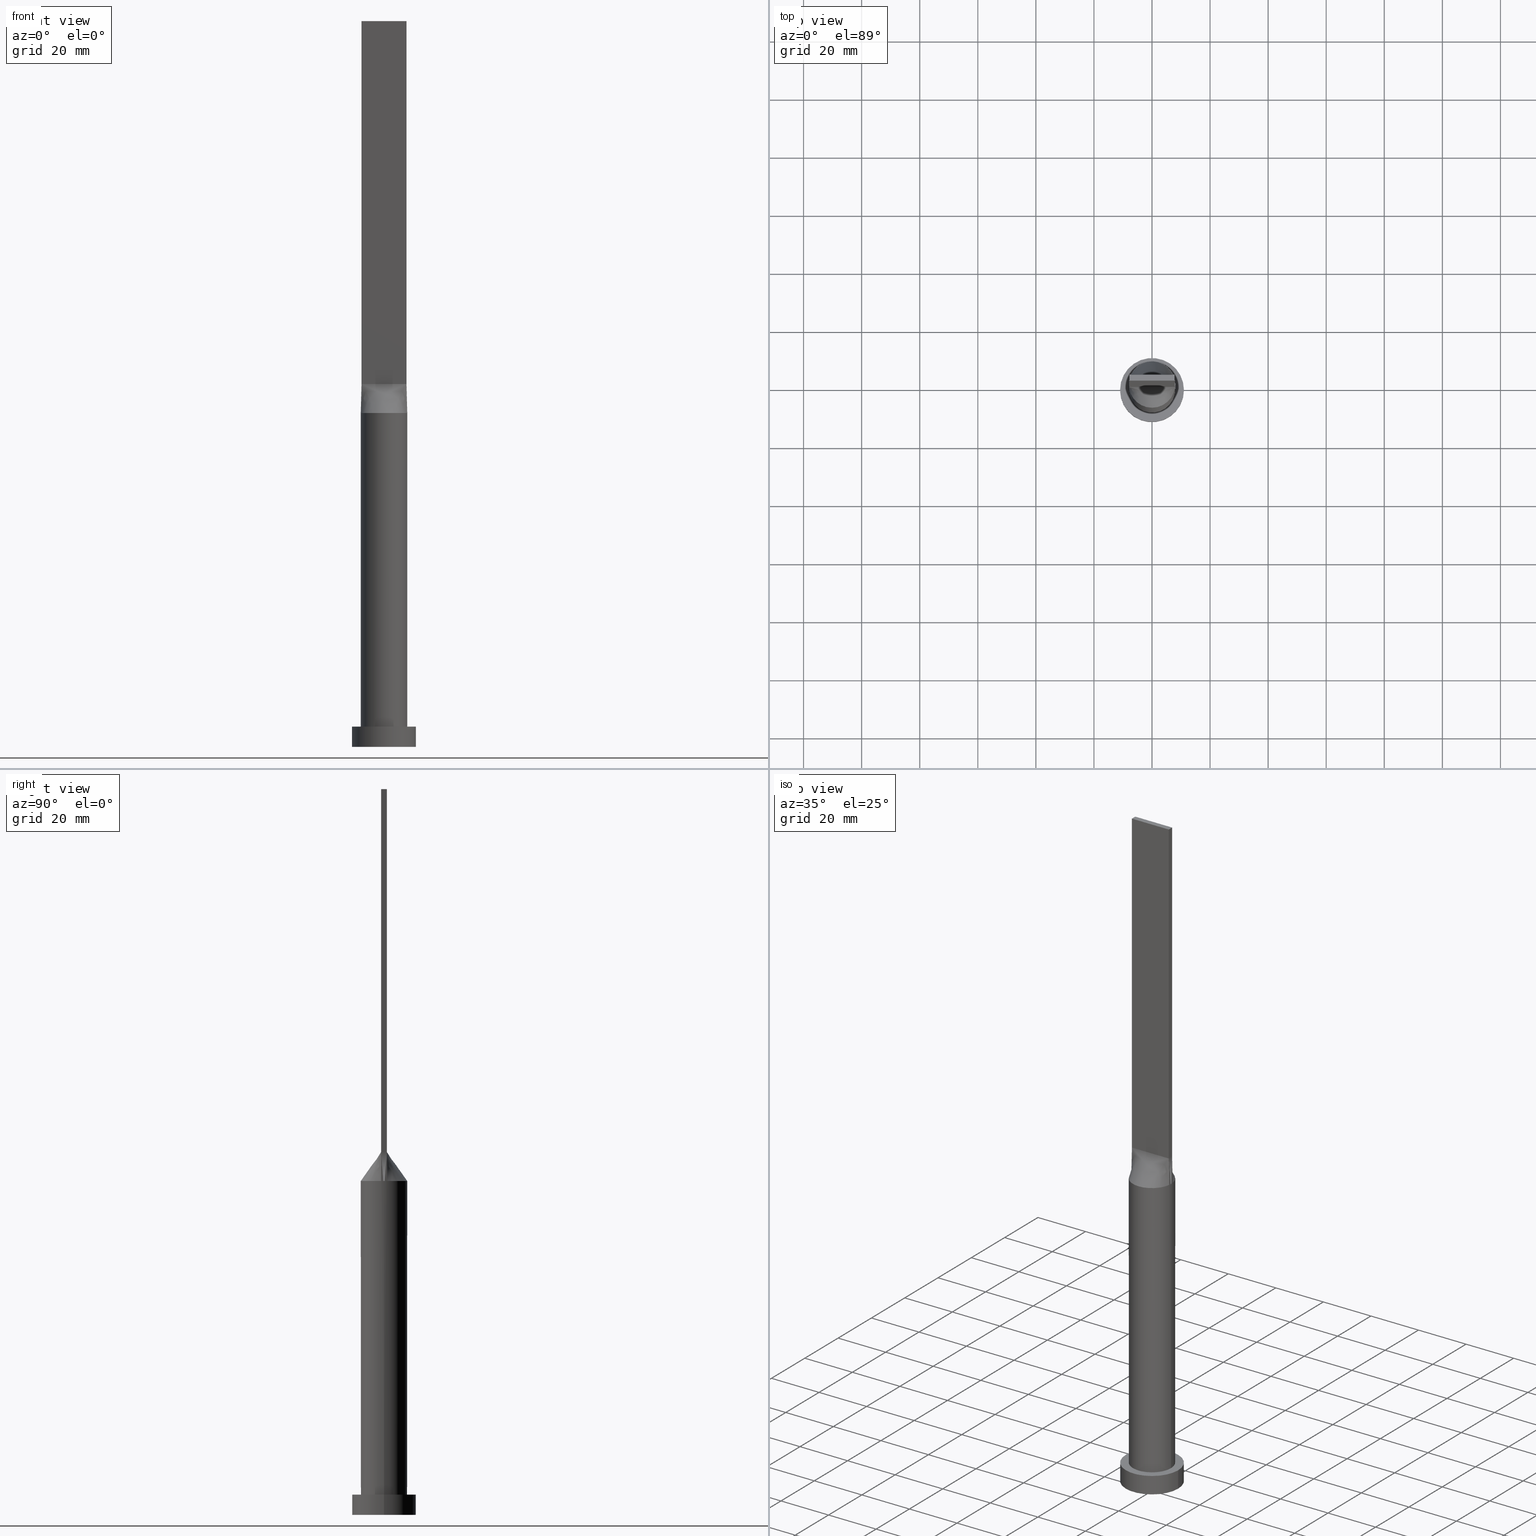
[diagram: canonical four-view strip — front | top / right | iso, engineering-drawing reading convention]
A machine part, canonical four-view strip (front | top / right | iso — engineering-drawing reading convention). The complete STEP part file that produces these views, byte-faithful:
ISO-10303-21;
HEADER;
FILE_DESCRIPTION (( 'STEP AP203' ),
    '1' );
FILE_NAME ('5cea.STEP',
    '2023-02-13T08:49:26',
    ( '' ),
    ( '' ),
    'SwSTEP 2.0',
    'SolidWorks 2019',
    '' );
FILE_SCHEMA (( 'CONFIG_CONTROL_DESIGN' ));
ENDSEC;

DATA;
#1 = CARTESIAN_POINT ( 'NONE',  ( -0.5861720261543129640, 7.999999999999998224, 114.9999999999999858 ) ) ;
#2 = ORIENTED_EDGE ( 'NONE', *, *, #195, .F. ) ;
#3 = ORIENTED_EDGE ( 'NONE', *, *, #418, .F. ) ;
#4 = APPROVAL_ROLE ( '' ) ;
#5 = CARTESIAN_POINT ( 'NONE',  ( 2.847317194822259534, 7.497028652483948008, 115.0000000000000284 ) ) ;
#6 = AXIS2_PLACEMENT_3D ( 'NONE', #38, #395, #391 ) ;
#7 = DATE_AND_TIME ( #411, #500 ) ;
#8 = CARTESIAN_POINT ( 'NONE',  ( -7.192469010134845853, 3.526369025759696019, 114.9999999999999716 ) ) ;
#9 = AXIS2_PLACEMENT_3D ( 'NONE', #341, #438, #188 ) ;
#10 = CYLINDRICAL_SURFACE ( 'NONE', #206, 8.000000000000000000 ) ;
#11 = DIRECTION ( 'NONE',  ( 0.000000000000000000, 0.000000000000000000, 1.000000000000000000 ) ) ;
#12 = APPROVAL_STATUS ( 'not_yet_approved' ) ;
#13 = CARTESIAN_POINT ( 'NONE',  ( -7.750000000000000000, -0.9999999999999986677, 250.0000000000000000 ) ) ;
#14 = CARTESIAN_POINT ( 'NONE',  ( 2.847317194822259534, -7.497028652483948008, 115.0000000000000284 ) ) ;
#15 = ORIENTED_EDGE ( 'NONE', *, *, #418, .T. ) ;
#16 = AXIS2_PLACEMENT_3D ( 'NONE', #141, #96, #590 ) ;
#17 = CARTESIAN_POINT ( 'NONE',  ( -7.750000000000000000, -0.3333333333333319271, 125.0000000000000000 ) ) ;
#18 = ORIENTED_EDGE ( 'NONE', *, *, #227, .T. ) ;
#19 = DIRECTION ( 'NONE',  ( -0.01841911599500831165, 0.002376660128388246706, 0.9998275289531671772 ) ) ;
#20 = VERTEX_POINT ( 'NONE', #77 ) ;
#21 = CARTESIAN_POINT ( 'NONE',  ( 7.104166666666667851, 1.000000000000000000, 125.0000000000000000 ) ) ;
#22 = ADVANCED_FACE ( 'NONE', ( #269 ), #638, .T. ) ;
#23 = CARTESIAN_POINT ( 'NONE',  ( 3.862537548001455878, 7.028047916340264933, 115.0000000000000284 ) ) ;
#24 = ORIENTED_EDGE ( 'NONE', *, *, #450, .F. ) ;
#25 = ADVANCED_FACE ( 'NONE', ( #475 ), #440, .T. ) ;
#26 = VECTOR ( 'NONE', #574, 1000.000000000000114 ) ;
#27 = CARTESIAN_POINT ( 'NONE',  ( -2.583333333333329485, 1.000000000000000000, 125.0000000000000000 ) ) ;
#28 = ORIENTED_EDGE ( 'NONE', *, *, #385, .F. ) ;
#29 = CARTESIAN_POINT ( 'NONE',  ( 2.583333333333337034, 1.000000000000000000, 125.0000000000000000 ) ) ;
#30 = DIRECTION ( 'NONE',  ( -0.000000000000000000, -0.000000000000000000, -1.000000000000000000 ) ) ;
#31 = CARTESIAN_POINT ( 'NONE',  ( 7.750000000000000000, -0.9999999999999997780, 250.0000000000000000 ) ) ;
#32 = DIRECTION ( 'NONE',  ( -1.000000000000000000, 0.000000000000000000, 0.000000000000000000 ) ) ;
#33 = CARTESIAN_POINT ( 'NONE',  ( -0.3229166666666622998, 1.000000000000000000, 125.0000000000000000 ) ) ;
#34 = PRODUCT ( '5cea', '5cea', '', ( #641 ) ) ;
#35 = CARTESIAN_POINT ( 'NONE',  ( 7.750000000000000000, -0.9999999999999997780, 125.0000000000000000 ) ) ;
#36 = AXIS2_PLACEMENT_3D ( 'NONE', #539, #338, #293 ) ;
#37 = LOCAL_TIME ( 9, 49, 26.00000000000000000, #214 ) ;
#38 = CARTESIAN_POINT ( 'NONE',  ( -7.750000000000000000, -0.9999999999999986677, 250.0000000000000000 ) ) ;
#39 = CARTESIAN_POINT ( 'NONE',  ( 0.000000000000000000, 0.000000000000000000, 115.0000000000000000 ) ) ;
#40 = DIRECTION ( 'NONE',  ( -1.000000000000000000, 0.000000000000000000, 0.000000000000000000 ) ) ;
#41 = ORIENTED_EDGE ( 'NONE', *, *, #576, .F. ) ;
#42 = PERSON_AND_ORGANIZATION ( #196, #164 ) ;
#43 = ADVANCED_FACE ( 'NONE', ( #625 ), #187, .F. ) ;
#44 = DIRECTION ( 'NONE',  ( 0.000000000000000000, 0.000000000000000000, 1.000000000000000000 ) ) ;
#45 = CARTESIAN_POINT ( 'NONE',  ( 5.562660223239392465, 5.770452176164421410, 115.0000000000000284 ) ) ;
#46 = AXIS2_PLACEMENT_3D ( 'NONE', #65, #601, #213 ) ;
#47 = DIRECTION ( 'NONE',  ( 0.000000000000000000, 0.000000000000000000, 1.000000000000000000 ) ) ;
#48 = DIRECTION ( 'NONE',  ( 0.000000000000000000, 0.000000000000000000, 1.000000000000000000 ) ) ;
#49 = CARTESIAN_POINT ( 'NONE',  ( -5.166666666666667851, -0.9999999999999986677, 125.0000000000000000 ) ) ;
#50 = APPLICATION_PROTOCOL_DEFINITION ( 'international standard', 'config_control_design', 1994, #109 ) ;
#51 = CARTESIAN_POINT ( 'NONE',  ( 7.934222933072200945, 1.023770701041573084, 115.0000000000000000 ) ) ;
#52 = APPLICATION_PROTOCOL_DEFINITION ( 'international standard', 'config_control_design', 1994, #79 ) ;
#53 = CARTESIAN_POINT ( 'NONE',  ( -2.302877821226939403, -7.683241396761614439, 115.0000000000000568 ) ) ;
#54 = CARTESIAN_POINT ( 'NONE',  ( 7.977894035085165036, -0.6853196604410977111, 115.0000000000000000 ) ) ;
#55 = CARTESIAN_POINT ( 'NONE',  ( -4.197916666666667851, -0.9999999999999986677, 125.0000000000000000 ) ) ;
#56 = CARTESIAN_POINT ( 'NONE',  ( 6.511821874825406198, -4.668925682402793598, 115.0000000000000000 ) ) ;
#57 = EDGE_CURVE ( 'NONE', #608, #371, #72, .T. ) ;
#58 = CARTESIAN_POINT ( 'NONE',  ( -1.291666666666670071, -0.9999999999999991118, 125.0000000000000000 ) ) ;
#59 = CARTESIAN_POINT ( 'NONE',  ( 7.999864793045824207, 2.000157186781041891E-15, 115.0000000000000000 ) ) ;
#60 = CARTESIAN_POINT ( 'NONE',  ( 1.291666666666661856, -0.9999999999999991118, 125.0000000000000000 ) ) ;
#61 = SHAPE_DEFINITION_REPRESENTATION ( #234, #556 ) ;
#62 = CARTESIAN_POINT ( 'NONE',  ( -7.750000000000000000, 0.3333333333333343140, 125.0000000000000000 ) ) ;
#63 = CALENDAR_DATE ( 2023, 13, 2 ) ;
#64 = CIRCLE ( 'NONE', #151, 8.000000000000000000 ) ;
#65 = CARTESIAN_POINT ( 'NONE',  ( 0.000000000000000000, 0.000000000000000000, 7.000000000000000000 ) ) ;
#66 = ORIENTED_EDGE ( 'NONE', *, *, #503, .T. ) ;
#67 = VECTOR ( 'NONE', #480, 1000.000000000000000 ) ;
#68 = SECURITY_CLASSIFICATION ( '', '', #416 ) ;
#69 = CARTESIAN_POINT ( 'NONE',  ( -6.511821874825407974, 4.668925682402791821, 115.0000000000000142 ) ) ;
#70 = EDGE_CURVE ( 'NONE', #371, #153, #130, .T. ) ;
#71 = CARTESIAN_POINT ( 'NONE',  ( -4.333237558274724677, -6.745559271922134670, 115.0000000000000284 ) ) ;
#72 = LINE ( 'NONE', #384, #26 ) ;
#73 = VERTEX_POINT ( 'NONE', #481 ) ;
#74 = CARTESIAN_POINT ( 'NONE',  ( 7.104166666666666963, -0.9999999999999995559, 125.0000000000000000 ) ) ;
#75 = ORIENTED_EDGE ( 'NONE', *, *, #274, .F. ) ;
#76 = APPROVAL ( #445, 'NEUR�EN�' ) ;
#77 = CARTESIAN_POINT ( 'NONE',  ( 8.000000000000000000, 9.797174393178825657E-16, 7.000000000000000000 ) ) ;
#78 = CARTESIAN_POINT ( 'NONE',  ( -6.994548530637814565, 3.908833842696238570, 114.9999999999999858 ) ) ;
#79 = APPLICATION_CONTEXT ( 'configuration controlled 3d designs of mechanical parts and assemblies' ) ;
#80 = VERTEX_POINT ( 'NONE', #31 ) ;
#81 = ORIENTED_EDGE ( 'NONE', *, *, #509, .T. ) ;
#82 = CARTESIAN_POINT ( 'NONE',  ( -7.934264564332944580, 1.023776086464161406, 115.0000000000000000 ) ) ;
#83 = CARTESIAN_POINT ( 'NONE',  ( -7.849610172922081297, 1.679519592204999023, 114.9999999999999858 ) ) ;
#84 = ORIENTED_EDGE ( 'NONE', *, *, #148, .F. ) ;
#85 = CARTESIAN_POINT ( 'NONE',  ( 0.000000000000000000, 0.000000000000000000, 7.000000000000000000 ) ) ;
#86 = CARTESIAN_POINT ( 'NONE',  ( -3.862537548001455878, 7.028047916340264045, 115.0000000000000284 ) ) ;
#87 = ORIENTED_EDGE ( 'NONE', *, *, #571, .F. ) ;
#88 = CARTESIAN_POINT ( 'NONE',  ( -7.750000000000000000, -0.6666666666666651864, 125.0000000000000000 ) ) ;
#89 = CARTESIAN_POINT ( 'NONE',  ( -5.562660223239390689, 5.770452176164420521, 115.0000000000000142 ) ) ;
#90 = ORIENTED_EDGE ( 'NONE', *, *, #485, .F. ) ;
#91 = LINE ( 'NONE', #219, #408 ) ;
#92 = DIRECTION ( 'NONE',  ( 1.000000000000000000, 0.000000000000000000, 0.000000000000000000 ) ) ;
#93 = FACE_OUTER_BOUND ( 'NONE', #320, .T. ) ;
#94 = CARTESIAN_POINT ( 'NONE',  ( 0.000000000000000000, 0.000000000000000000, 115.0000000000000000 ) ) ;
#95 =( NAMED_UNIT ( * ) PLANE_ANGLE_UNIT ( ) SI_UNIT ( $, .RADIAN. ) );
#96 = DIRECTION ( 'NONE',  ( 0.000000000000000000, 0.000000000000000000, 1.000000000000000000 ) ) ;
#97 = APPROVAL_DATE_TIME ( #362, #158 ) ;
#98 = DIRECTION ( 'NONE',  ( 1.000000000000000000, 0.000000000000000000, 0.000000000000000000 ) ) ;
#99 = AXIS2_PLACEMENT_3D ( 'NONE', #502, #11, #101 ) ;
#100 = CC_DESIGN_APPROVAL ( #76, ( #311 ) ) ;
#101 = DIRECTION ( 'NONE',  ( 1.000000000000000000, 0.000000000000000000, 0.000000000000000000 ) ) ;
#102 = CARTESIAN_POINT ( 'NONE',  ( -7.750000000000000000, 1.000000000000000000, 250.0000000000000000 ) ) ;
#103 = CC_DESIGN_PERSON_AND_ORGANIZATION_ASSIGNMENT ( #372, #323, ( #68 ) ) ;
#104 = CARTESIAN_POINT ( 'NONE',  ( 7.934252830235720033, 1.023774570959714802, 115.0000000000000000 ) ) ;
#105 = CARTESIAN_POINT ( 'NONE',  ( 5.562660223239390689, -5.770452176164421410, 115.0000000000000142 ) ) ;
#106 = CARTESIAN_POINT ( 'NONE',  ( -6.994548530637814565, 3.908833842696238570, 114.9999999999999858 ) ) ;
#107 = CARTESIAN_POINT ( 'NONE',  ( 2.302877821226934074, -7.683241396761609998, 115.0000000000000284 ) ) ;
#108 = ORIENTED_EDGE ( 'NONE', *, *, #111, .F. ) ;
#109 = APPLICATION_CONTEXT ( 'configuration controlled 3d designs of mechanical parts and assemblies' ) ;
#110 = CIRCLE ( 'NONE', #271, 11.00000000000000000 ) ;
#111 = EDGE_CURVE ( 'NONE', #73, #379, #232, .T. ) ;
#112 = EDGE_LOOP ( 'NONE', ( #245, #3, #108, #511 ) ) ;
#113 = CARTESIAN_POINT ( 'NONE',  ( -7.934264564332944580, 1.023776086464161406, 115.0000000000000000 ) ) ;
#114 = ORIENTED_EDGE ( 'NONE', *, *, #396, .T. ) ;
#115 = ADVANCED_FACE ( 'NONE', ( #487 ), #493, .F. ) ;
#116 = CARTESIAN_POINT ( 'NONE',  ( 6.994548530637813677, -3.908833842696238570, 114.9999999999999858 ) ) ;
#117 = CARTESIAN_POINT ( 'NONE',  ( -6.226863775955933100, 5.046530946333157353, 114.9999999999999858 ) ) ;
#118 = ORIENTED_EDGE ( 'NONE', *, *, #236, .T. ) ;
#119 = DATE_AND_TIME ( #63, #229 ) ;
#120 = CARTESIAN_POINT ( 'NONE',  ( 4.520833333333335702, 1.000000000000000000, 125.0000000000000000 ) ) ;
#121 = ORIENTED_EDGE ( 'NONE', *, *, #594, .T. ) ;
#122 = ORIENTED_EDGE ( 'NONE', *, *, #294, .F. ) ;
#123 = CIRCLE ( 'NONE', #398, 8.000000000000000000 ) ;
#124 = CARTESIAN_POINT ( 'NONE',  ( -7.750000000000000000, 1.000000000000000000, 250.0000000000000000 ) ) ;
#125 = CARTESIAN_POINT ( 'NONE',  ( 3.862537548001456322, -7.028047916340264045, 115.0000000000000284 ) ) ;
#126 = CARTESIAN_POINT ( 'NONE',  ( 5.489583333333334814, 1.000000000000000000, 125.0000000000000000 ) ) ;
#127 = CARTESIAN_POINT ( 'NONE',  ( -2.847317194822260422, 7.497028652483947120, 115.0000000000000284 ) ) ;
#128 = ORIENTED_EDGE ( 'NONE', *, *, #552, .F. ) ;
#129 = CARTESIAN_POINT ( 'NONE',  ( 0.000000000000000000, 0.000000000000000000, 7.000000000000000000 ) ) ;
#130 = LINE ( 'NONE', #336, #322 ) ;
#131 = DIRECTION ( 'NONE',  ( 1.000000000000000000, 0.000000000000000000, 0.000000000000000000 ) ) ;
#132 = CARTESIAN_POINT ( 'NONE',  ( 1.172177046651856624, 7.934824862069278950, 115.0000000000000284 ) ) ;
#133 = ORIENTED_EDGE ( 'NONE', *, *, #274, .T. ) ;
#134 = PLANE ( 'NONE',  #9 ) ;
#135 = ADVANCED_FACE ( 'NONE', ( #244 ), #150, .F. ) ;
#136 = CARTESIAN_POINT ( 'NONE',  ( -2.847317194822260422, 7.497028652483947120, 115.0000000000000284 ) ) ;
#137 = DIRECTION ( 'NONE',  ( 0.01841911599500831165, -0.002376660128387965247, 0.9998275289531671772 ) ) ;
#138 = CARTESIAN_POINT ( 'NONE',  ( -11.00000000000000000, 0.000000000000000000, 0.000000000000000000 ) ) ;
#139 = ADVANCED_FACE ( 'NONE', ( #239 ), #587, .F. ) ;
#140 = DIRECTION ( 'NONE',  ( 1.000000000000000000, 9.769962616701377556E-15, 0.000000000000000000 ) ) ;
#141 = CARTESIAN_POINT ( 'NONE',  ( 0.000000000000000000, 0.000000000000000000, 115.0000000000000000 ) ) ;
#142 = CC_DESIGN_PERSON_AND_ORGANIZATION_ASSIGNMENT ( #209, #156, ( #34 ) ) ;
#143 = DIRECTION ( 'NONE',  ( -0.000000000000000000, -0.000000000000000000, -1.000000000000000000 ) ) ;
#144 = CARTESIAN_POINT ( 'NONE',  ( -7.750000000000000000, -0.9999999999999986677, 125.0000000000000000 ) ) ;
#145 = CARTESIAN_POINT ( 'NONE',  ( 7.192469010134847629, 3.526369025759696907, 115.0000000000000000 ) ) ;
#146 = EDGE_LOOP ( 'NONE', ( #207, #114 ) ) ;
#147 = DIRECTION ( 'NONE',  ( 1.000000000000000000, 0.000000000000000000, 0.000000000000000000 ) ) ;
#148 = EDGE_CURVE ( 'NONE', #415, #371, #250, .T. ) ;
#149 = CARTESIAN_POINT ( 'NONE',  ( 7.750000000000000000, 1.000000000000000000, 125.0000000000000000 ) ) ;
#150 = PLANE ( 'NONE',  #513 ) ;
#151 = AXIS2_PLACEMENT_3D ( 'NONE', #536, #302, #92 ) ;
#152 = CARTESIAN_POINT ( 'NONE',  ( -6.994548530637818118, -3.908833842696237681, 115.0000000000000142 ) ) ;
#153 = VERTEX_POINT ( 'NONE', #355 ) ;
#154 = CARTESIAN_POINT ( 'NONE',  ( 7.999729586091648414, -0.3426598302205492996, 115.0000000000000000 ) ) ;
#155 = VECTOR ( 'NONE', #486, 1000.000000000000000 ) ;
#156 = PERSON_AND_ORGANIZATION_ROLE ( 'design_owner' ) ;
#157 = CARTESIAN_POINT ( 'NONE',  ( 7.750000000000000000, 0.3333333333333330928, 125.0000000000000000 ) ) ;
#158 = APPROVAL ( #193, 'NEUR�EN�' ) ;
#159 = CARTESIAN_POINT ( 'NONE',  ( -2.260416666666669183, -0.9999999999999991118, 125.0000000000000000 ) ) ;
#160 = DIRECTION ( 'NONE',  ( 0.000000000000000000, 0.000000000000000000, 1.000000000000000000 ) ) ;
#161 = EDGE_CURVE ( 'NONE', #479, #218, #182, .T. ) ;
#162 = CARTESIAN_POINT ( 'NONE',  ( -7.977894035085165036, 0.6853196604410968229, 115.0000000000000000 ) ) ;
#163 = ORIENTED_EDGE ( 'NONE', *, *, #360, .F. ) ;
#164 = ORGANIZATION ( 'NEUR�EN�', 'NEUR�EN�', '' ) ;
#165 = PERSON_AND_ORGANIZATION ( #196, #164 ) ;
#166 = LINE ( 'NONE', #13, #420 ) ;
#167 = ORIENTED_EDGE ( 'NONE', *, *, #442, .F. ) ;
#168 = CARTESIAN_POINT ( 'NONE',  ( 1.614583333333328818, -0.9999999999999991118, 125.0000000000000000 ) ) ;
#169 = CARTESIAN_POINT ( 'NONE',  ( -1.614583333333336368, -0.9999999999999991118, 125.0000000000000000 ) ) ;
#170 = CARTESIAN_POINT ( 'NONE',  ( -7.104166666666666963, -0.9999999999999986677, 125.0000000000000000 ) ) ;
#171 = ORIENTED_EDGE ( 'NONE', *, *, #179, .T. ) ;
#172 = CARTESIAN_POINT ( 'NONE',  ( -7.849610172922084850, -1.679519592204998357, 115.0000000000000284 ) ) ;
#173 = CARTESIAN_POINT ( 'NONE',  ( 4.333237558274722900, 6.745559271922132893, 115.0000000000000284 ) ) ;
#174 = AXIS2_PLACEMENT_3D ( 'NONE', #85, #237, #32 ) ;
#175 = VECTOR ( 'NONE', #137, 1000.000000000000114 ) ;
#176 = ORIENTED_EDGE ( 'NONE', *, *, #161, .F. ) ;
#177 = CARTESIAN_POINT ( 'NONE',  ( 6.458333333333333037, -0.9999999999999995559, 125.0000000000000000 ) ) ;
#178 = CARTESIAN_POINT ( 'NONE',  ( 0.3229166666666710706, 1.000000000000000000, 125.0000000000000000 ) ) ;
#179 = EDGE_CURVE ( 'NONE', #20, #279, #255, .T. ) ;
#180 = LINE ( 'NONE', #186, #358 ) ;
#181 = CARTESIAN_POINT ( 'NONE',  ( 5.562660223239392465, 5.770452176164421410, 115.0000000000000284 ) ) ;
#182 = CIRCLE ( 'NONE', #444, 11.00000000000000000 ) ;
#183 = LINE ( 'NONE', #422, #300 ) ;
#184 = CARTESIAN_POINT ( 'NONE',  ( 2.847317194822259534, 7.497028652483948008, 115.0000000000000284 ) ) ;
#185 = EDGE_LOOP ( 'NONE', ( #133, #407, #529, #381 ) ) ;
#186 = CARTESIAN_POINT ( 'NONE',  ( -7.750000000000000000, -0.9999999999999986677, 125.0000000000000000 ) ) ;
#187 = PLANE ( 'NONE',  #472 ) ;
#188 = DIRECTION ( 'NONE',  ( 1.000000000000000000, 0.000000000000000000, -0.000000000000000000 ) ) ;
#189 = DIRECTION ( 'NONE',  ( 0.000000000000000000, 0.000000000000000000, 1.000000000000000000 ) ) ;
#190 = CARTESIAN_POINT ( 'NONE',  ( -7.750000000000000000, 1.000000000000000000, 125.0000000000000000 ) ) ;
#191 = DIRECTION ( 'NONE',  ( -0.000000000000000000, -0.000000000000000000, -1.000000000000000000 ) ) ;
#192 = ORIENTED_EDGE ( 'NONE', *, *, #227, .F. ) ;
#193 = APPROVAL_STATUS ( 'not_yet_approved' ) ;
#194 = CARTESIAN_POINT ( 'NONE',  ( 7.750000000000000000, 1.000000000000000000, 125.0000000000000000 ) ) ;
#195 = EDGE_CURVE ( 'NONE', #292, #226, #635, .T. ) ;
#196 = PERSON ( 'NEUR�EN�', 'NEUR�EN�', 'NEUR�EN�', ('NEUR�EN�'), ('NEUR�EN�'), ('NEUR�EN�') ) ;
#197 = CARTESIAN_POINT ( 'NONE',  ( 0.000000000000000000, 0.000000000000000000, 115.0000000000000000 ) ) ;
#198 = CARTESIAN_POINT ( 'NONE',  ( -1.172177046651856402, 7.934824862069282503, 115.0000000000000284 ) ) ;
#199 = CARTESIAN_POINT ( 'NONE',  ( -7.849610172922081297, 1.679519592204999023, 114.9999999999999858 ) ) ;
#200 = ORIENTED_EDGE ( 'NONE', *, *, #488, .F. ) ;
#201 = DIRECTION ( 'NONE',  ( 1.000000000000000000, 0.000000000000000000, 0.000000000000000000 ) ) ;
#202 = CARTESIAN_POINT ( 'NONE',  ( 6.226863775955932212, -5.046530946333159129, 115.0000000000000000 ) ) ;
#203 = CC_DESIGN_PERSON_AND_ORGANIZATION_ASSIGNMENT ( #637, #453, ( #311 ) ) ;
#204 = CARTESIAN_POINT ( 'NONE',  ( 8.000000000000000000, 9.797174393178825657E-16, 115.0000000000000000 ) ) ;
#205 = VECTOR ( 'NONE', #286, 1000.000000000000000 ) ;
#206 = AXIS2_PLACEMENT_3D ( 'NONE', #197, #143, #365 ) ;
#207 = ORIENTED_EDGE ( 'NONE', *, *, #306, .T. ) ;
#208 = ORIENTED_EDGE ( 'NONE', *, *, #495, .T. ) ;
#209 = PERSON_AND_ORGANIZATION ( #196, #164 ) ;
#210 = CARTESIAN_POINT ( 'NONE',  ( 3.229166666666663854, -0.9999999999999993339, 125.0000000000000000 ) ) ;
#211 = CARTESIAN_POINT ( 'NONE',  ( -0.5861720261543158506, -7.999999999999998224, 115.0000000000000142 ) ) ;
#212 = EDGE_CURVE ( 'NONE', #469, #277, #243, .T. ) ;
#213 = DIRECTION ( 'NONE',  ( -1.000000000000000000, 0.000000000000000000, 0.000000000000000000 ) ) ;
#214 = COORDINATED_UNIVERSAL_TIME_OFFSET ( 1, 0, .AHEAD. ) ;
#215 = CARTESIAN_POINT ( 'NONE',  ( 7.675166908885234562, 2.399868494543665243, 114.9999999999999574 ) ) ;
#216 = DIRECTION ( 'NONE',  ( 1.000000000000000000, 0.000000000000000000, 0.000000000000000000 ) ) ;
#217 = CARTESIAN_POINT ( 'NONE',  ( -7.750000000000000000, -0.9999999999999986677, 250.0000000000000000 ) ) ;
#218 = VERTEX_POINT ( 'NONE', #138 ) ;
#219 = CARTESIAN_POINT ( 'NONE',  ( 7.842111466536100473, -1.011885350520787430, 120.0000000000000000 ) ) ;
#220 = CARTESIAN_POINT ( 'NONE',  ( -7.934222933072202721, -1.023770701041571973, 115.0000000000000000 ) ) ;
#221 = ORIENTED_EDGE ( 'NONE', *, *, #594, .F. ) ;
#222 = CARTESIAN_POINT ( 'NONE',  ( -1.291666666666662300, 1.000000000000000000, 125.0000000000000000 ) ) ;
#223 = VERTEX_POINT ( 'NONE', #144 ) ;
#224 = CARTESIAN_POINT ( 'NONE',  ( 7.750000000000000000, -0.9999999999999997780, 125.0000000000000000 ) ) ;
#225 = ORIENTED_EDGE ( 'NONE', *, *, #495, .F. ) ;
#226 = VERTEX_POINT ( 'NONE', #389 ) ;
#227 = EDGE_CURVE ( 'NONE', #609, #479, #345, .T. ) ;
#228 = CARTESIAN_POINT ( 'NONE',  ( 2.302877821226935406, 7.683241396761612663, 115.0000000000000284 ) ) ;
#229 = LOCAL_TIME ( 9, 49, 26.00000000000000000, #261 ) ;
#230 = CARTESIAN_POINT ( 'NONE',  ( -7.675166908885236339, 2.399868494543667907, 114.9999999999999858 ) ) ;
#231 = CARTESIAN_POINT ( 'NONE',  ( 7.750000000000000000, -0.9999999999999997780, 250.0000000000000000 ) ) ;
#232 = LINE ( 'NONE', #433, #297 ) ;
#233 = CARTESIAN_POINT ( 'NONE',  ( -7.934222933072202721, -1.023770701041571973, 115.0000000000000000 ) ) ;
#234 = PRODUCT_DEFINITION_SHAPE ( 'NONE', 'NONE',  #311 ) ;
#235 = CARTESIAN_POINT ( 'NONE',  ( -1.172177046651856402, 7.934824862069282503, 115.0000000000000284 ) ) ;
#236 = EDGE_CURVE ( 'NONE', #315, #608, #64, .T. ) ;
#237 = DIRECTION ( 'NONE',  ( -0.000000000000000000, -0.000000000000000000, -1.000000000000000000 ) ) ;
#238 = APPROVAL_PERSON_ORGANIZATION ( #42, #76, #4 ) ;
#239 = FACE_OUTER_BOUND ( 'NONE', #579, .T. ) ;
#240 = LINE ( 'NONE', #289, #577 ) ;
#241 = CARTESIAN_POINT ( 'NONE',  ( 11.00000000000000000, 1.347111479062088405E-15, 7.000000000000000000 ) ) ;
#242 = APPROVAL_DATE_TIME ( #257, #76 ) ;
#243 = CIRCLE ( 'NONE', #16, 8.000000000000000000 ) ;
#244 = FACE_OUTER_BOUND ( 'NONE', #380, .T. ) ;
#245 = ORIENTED_EDGE ( 'NONE', *, *, #544, .T. ) ;
#246 = CIRCLE ( 'NONE', #497, 8.000000000000000000 ) ;
#247 = CARTESIAN_POINT ( 'NONE',  ( 7.934222933072200945, 1.023770701041573972, 115.0000000000000000 ) ) ;
#248 = CC_DESIGN_APPROVAL ( #588, ( #68 ) ) ;
#249 = CARTESIAN_POINT ( 'NONE',  ( 2.302877821226935406, 7.683241396761612663, 115.0000000000000284 ) ) ;
#250 = LINE ( 'NONE', #194, #393 ) ;
#251 = EDGE_LOOP ( 'NONE', ( #283, #176 ) ) ;
#252 = COORDINATED_UNIVERSAL_TIME_OFFSET ( 1, 0, .AHEAD. ) ;
#253 = CARTESIAN_POINT ( 'NONE',  ( 5.183259239191612799, -6.116644610143060490, 115.0000000000000000 ) ) ;
#254 = FACE_OUTER_BOUND ( 'NONE', #583, .T. ) ;
#255 = CIRCLE ( 'NONE', #613, 8.000000000000000000 ) ;
#256 = CARTESIAN_POINT ( 'NONE',  ( 0.3229166666666631325, -0.9999999999999991118, 125.0000000000000000 ) ) ;
#257 = DATE_AND_TIME ( #307, #507 ) ;
#258 = CARTESIAN_POINT ( 'NONE',  ( -1.172177046651859511, -7.934824862069280726, 115.0000000000000000 ) ) ;
#259 = LINE ( 'NONE', #204, #288 ) ;
#260 = ORIENTED_EDGE ( 'NONE', *, *, #442, .T. ) ;
#261 = COORDINATED_UNIVERSAL_TIME_OFFSET ( 1, 0, .AHEAD. ) ;
#262 = CC_DESIGN_DATE_AND_TIME_ASSIGNMENT ( #7, #543, ( #311 ) ) ;
#263 = CARTESIAN_POINT ( 'NONE',  ( 7.999729586091648414, 0.3426598302205475788, 115.0000000000000000 ) ) ;
#264 = CARTESIAN_POINT ( 'NONE',  ( -2.847317194822263531, -7.497028652483947120, 115.0000000000000426 ) ) ;
#265 = CARTESIAN_POINT ( 'NONE',  ( -7.999729586091648414, -0.3426598302205468571, 115.0000000000000000 ) ) ;
#266 = EDGE_LOOP ( 'NONE', ( #340, #18, #392, #547 ) ) ;
#267 = CARTESIAN_POINT ( 'NONE',  ( -3.862537548001458987, -7.028047916340261381, 115.0000000000000284 ) ) ;
#268 = FACE_OUTER_BOUND ( 'NONE', #560, .T. ) ;
#269 = FACE_OUTER_BOUND ( 'NONE', #505, .T. ) ;
#270 = VECTOR ( 'NONE', #374, 1000.000000000000000 ) ;
#271 = AXIS2_PLACEMENT_3D ( 'NONE', #397, #47, #201 ) ;
#272 = CARTESIAN_POINT ( 'NONE',  ( -4.520833333333330373, 1.000000000000000000, 125.0000000000000000 ) ) ;
#273 = ORIENTED_EDGE ( 'NONE', *, *, #488, .T. ) ;
#274 = EDGE_CURVE ( 'NONE', #608, #469, #517, .T. ) ;
#275 = CARTESIAN_POINT ( 'NONE',  ( 7.675166908885234562, -2.399868494543666131, 114.9999999999999858 ) ) ;
#276 = CARTESIAN_POINT ( 'NONE',  ( 2.260416666666670960, 1.000000000000000000, 125.0000000000000000 ) ) ;
#277 = VERTEX_POINT ( 'NONE', #304 ) ;
#278 = CARTESIAN_POINT ( 'NONE',  ( -7.192469010134845853, 3.526369025759696019, 114.9999999999999716 ) ) ;
#279 = VERTEX_POINT ( 'NONE', #467 ) ;
#280 = CIRCLE ( 'NONE', #617, 8.000000000000000000 ) ;
#281 = CARTESIAN_POINT ( 'NONE',  ( -8.000000000000000000, 0.000000000000000000, 115.0000000000000000 ) ) ;
#282 = CARTESIAN_POINT ( 'NONE',  ( -4.197916666666664298, 1.000000000000000000, 125.0000000000000000 ) ) ;
#283 = ORIENTED_EDGE ( 'NONE', *, *, #619, .F. ) ;
#284 = DIRECTION ( 'NONE',  ( -0.000000000000000000, -0.000000000000000000, -1.000000000000000000 ) ) ;
#285 = CARTESIAN_POINT ( 'NONE',  ( -3.552083333333330373, 1.000000000000000000, 125.0000000000000000 ) ) ;
#286 = DIRECTION ( 'NONE',  ( -0.000000000000000000, -0.000000000000000000, -1.000000000000000000 ) ) ;
#287 = CARTESIAN_POINT ( 'NONE',  ( -2.302877821226935851, 7.683241396761610886, 115.0000000000000284 ) ) ;
#288 = VECTOR ( 'NONE', #510, 1000.000000000000000 ) ;
#289 = CARTESIAN_POINT ( 'NONE',  ( 7.750000000000000000, 1.000000000000000000, 250.0000000000000000 ) ) ;
#290 = CARTESIAN_POINT ( 'NONE',  ( 7.849610172922079521, 1.679519592204998801, 114.9999999999999858 ) ) ;
#291 = ORIENTED_EDGE ( 'NONE', *, *, #619, .T. ) ;
#292 = VERTEX_POINT ( 'NONE', #410 ) ;
#293 = DIRECTION ( 'NONE',  ( 1.000000000000000000, 0.000000000000000000, -0.000000000000000000 ) ) ;
#294 = EDGE_CURVE ( 'NONE', #427, #371, #600, .T. ) ;
#295 = CARTESIAN_POINT ( 'NONE',  ( 6.511821874825409751, 4.668925682402791821, 115.0000000000000000 ) ) ;
#296 = DIRECTION ( 'NONE',  ( 0.000000000000000000, 0.000000000000000000, 1.000000000000000000 ) ) ;
#297 = VECTOR ( 'NONE', #496, 1000.000000000000000 ) ;
#298 = CARTESIAN_POINT ( 'NONE',  ( 6.226863775955932212, 5.046530946333158241, 115.0000000000000142 ) ) ;
#299 = PERSON_AND_ORGANIZATION ( #196, #164 ) ;
#300 = VECTOR ( 'NONE', #441, 1000.000000000000114 ) ;
#301 = CARTESIAN_POINT ( 'NONE',  ( 7.849610172922079521, 1.679519592204998801, 114.9999999999999858 ) ) ;
#302 = DIRECTION ( 'NONE',  ( 0.000000000000000000, 0.000000000000000000, 1.000000000000000000 ) ) ;
#303 =( NAMED_UNIT ( * ) SI_UNIT ( $, .STERADIAN. ) SOLID_ANGLE_UNIT ( ) );
#304 = CARTESIAN_POINT ( 'NONE',  ( -7.999864793045825984, 2.648518981350782698E-14, 115.0000000000000142 ) ) ;
#305 = CARTESIAN_POINT ( 'NONE',  ( -5.489583333333333925, -0.9999999999999986677, 125.0000000000000000 ) ) ;
#306 = EDGE_CURVE ( 'NONE', #564, #609, #477, .T. ) ;
#307 = CALENDAR_DATE ( 2023, 13, 2 ) ;
#308 = CARTESIAN_POINT ( 'NONE',  ( 2.583333333333329929, -0.9999999999999991118, 125.0000000000000000 ) ) ;
#309 = CARTESIAN_POINT ( 'NONE',  ( 0.000000000000000000, 0.000000000000000000, 115.0000000000000000 ) ) ;
#310 = CARTESIAN_POINT ( 'NONE',  ( -6.226863775955933988, -5.046530946333157353, 114.9999999999999858 ) ) ;
#311 = PRODUCT_DEFINITION ( 'NEZN�M�', '', #605, #640 ) ;
#312 = CARTESIAN_POINT ( 'NONE',  ( 3.552083333333331261, -0.9999999999999993339, 125.0000000000000000 ) ) ;
#313 = CARTESIAN_POINT ( 'NONE',  ( 7.750000000000000000, -0.3333333333333335369, 125.0000000000000000 ) ) ;
#314 = CARTESIAN_POINT ( 'NONE',  ( 5.166666666666668739, 1.000000000000000000, 125.0000000000000000 ) ) ;
#315 = VERTEX_POINT ( 'NONE', #59 ) ;
#316 = CARTESIAN_POINT ( 'NONE',  ( 7.977894035085165036, 0.6853196604410960457, 115.0000000000000000 ) ) ;
#317 = ORIENTED_EDGE ( 'NONE', *, *, #576, .T. ) ;
#318 = CARTESIAN_POINT ( 'NONE',  ( 5.489583333333332149, -0.9999999999999995559, 125.0000000000000000 ) ) ;
#319 = CARTESIAN_POINT ( 'NONE',  ( -7.977894035085166813, -0.6853196604410948245, 115.0000000000000000 ) ) ;
#320 = EDGE_LOOP ( 'NONE', ( #602, #631, #515, #377 ) ) ;
#321 = CARTESIAN_POINT ( 'NONE',  ( -3.229166666666668739, -0.9999999999999986677, 125.0000000000000000 ) ) ;
#322 = VECTOR ( 'NONE', #527, 1000.000000000000000 ) ;
#323 = PERSON_AND_ORGANIZATION_ROLE ( 'classification_officer' ) ;
#324 = ORIENTED_EDGE ( 'NONE', *, *, #485, .T. ) ;
#325 = AXIS2_PLACEMENT_3D ( 'NONE', #361, #160, #216 ) ;
#326 = CARTESIAN_POINT ( 'NONE',  ( 1.291666666666671182, 1.000000000000000000, 125.0000000000000000 ) ) ;
#327 = PERSON_AND_ORGANIZATION_ROLE ( 'creator' ) ;
#328 = ORIENTED_EDGE ( 'NONE', *, *, #57, .T. ) ;
#329 = DIRECTION ( 'NONE',  ( 1.000000000000000000, 0.000000000000000000, -0.000000000000000000 ) ) ;
#330 = CARTESIAN_POINT ( 'NONE',  ( -7.675166908885238115, -2.399868494543664799, 115.0000000000000000 ) ) ;
#331 = CARTESIAN_POINT ( 'NONE',  ( -5.562660223239390689, 5.770452176164420521, 115.0000000000000142 ) ) ;
#332 = CLOSED_SHELL ( 'NONE', ( #581, #404, #561, #567, #597, #368, #22, #350, #413, #25, #135, #43, #115, #139, #476 ) ) ;
#333 = EDGE_LOOP ( 'NONE', ( #66, #167, #28, #15 ) ) ;
#334 = LINE ( 'NONE', #281, #627 ) ;
#335 = CARTESIAN_POINT ( 'NONE',  ( -5.183259239191617240, -6.116644610143057825, 115.0000000000000284 ) ) ;
#336 = CARTESIAN_POINT ( 'NONE',  ( -7.750000000000000000, 1.000000000000000000, 125.0000000000000000 ) ) ;
#337 = VECTOR ( 'NONE', #462, 1000.000000000000000 ) ;
#338 = DIRECTION ( 'NONE',  ( 0.000000000000000000, 0.000000000000000000, 1.000000000000000000 ) ) ;
#339 = CARTESIAN_POINT ( 'NONE',  ( -1.614583333333329040, 1.000000000000000000, 125.0000000000000000 ) ) ;
#340 = ORIENTED_EDGE ( 'NONE', *, *, #396, .F. ) ;
#341 = CARTESIAN_POINT ( 'NONE',  ( 0.000000000000000000, 0.000000000000000000, 7.000000000000000000 ) ) ;
#342 = CARTESIAN_POINT ( 'NONE',  ( -4.333237558274722900, 6.745559271922134670, 115.0000000000000284 ) ) ;
#343 = ORIENTED_EDGE ( 'NONE', *, *, #236, .F. ) ;
#344 = LINE ( 'NONE', #622, #458 ) ;
#345 = LINE ( 'NONE', #241, #354 ) ;
#346 = CC_DESIGN_PERSON_AND_ORGANIZATION_ASSIGNMENT ( #376, #512, ( #605 ) ) ;
#347 = FACE_OUTER_BOUND ( 'NONE', #447, .T. ) ;
#348 = CC_DESIGN_SECURITY_CLASSIFICATION ( #68, ( #605 ) ) ;
#349 = CARTESIAN_POINT ( 'NONE',  ( 7.934252830235720033, 1.023774570959714802, 115.0000000000000000 ) ) ;
#350 = ADVANCED_FACE ( 'NONE', ( #268 ), #531, .T. ) ;
#351 = DIRECTION ( 'NONE',  ( 1.000000000000000000, 0.000000000000000000, -0.000000000000000000 ) ) ;
#352 = CARTESIAN_POINT ( 'NONE',  ( 7.192469010134847629, 3.526369025759696907, 115.0000000000000000 ) ) ;
#353 = CALENDAR_DATE ( 2023, 13, 2 ) ;
#354 = VECTOR ( 'NONE', #191, 1000.000000000000000 ) ;
#355 = CARTESIAN_POINT ( 'NONE',  ( -7.750000000000000000, 1.000000000000000000, 125.0000000000000000 ) ) ;
#356 = EDGE_LOOP ( 'NONE', ( #482, #121, #225, #429, #87 ) ) ;
#357 = FACE_OUTER_BOUND ( 'NONE', #251, .T. ) ;
#358 = VECTOR ( 'NONE', #483, 1000.000000000000000 ) ;
#359 = CC_DESIGN_APPROVAL ( #158, ( #605 ) ) ;
#360 = EDGE_CURVE ( 'NONE', #315, #20, #259, .T. ) ;
#361 = CARTESIAN_POINT ( 'NONE',  ( 0.000000000000000000, 0.000000000000000000, 7.000000000000000000 ) ) ;
#362 = DATE_AND_TIME ( #353, #468 ) ;
#363 = LINE ( 'NONE', #102, #337 ) ;
#364 = CARTESIAN_POINT ( 'NONE',  ( -6.511821874825411527, -4.668925682402791821, 115.0000000000000284 ) ) ;
#365 = DIRECTION ( 'NONE',  ( -1.000000000000000000, 0.000000000000000000, 0.000000000000000000 ) ) ;
#366 = AXIS2_PLACEMENT_3D ( 'NONE', #94, #402, #585 ) ;
#367 = FACE_OUTER_BOUND ( 'NONE', #266, .T. ) ;
#368 = ADVANCED_FACE ( 'NONE', ( #254 ), #554, .T. ) ;
#369 = CARTESIAN_POINT ( 'NONE',  ( 0.6458333333333292625, -0.9999999999999991118, 125.0000000000000000 ) ) ;
#370 = CARTESIAN_POINT ( 'NONE',  ( -7.750000000000000000, 0.6666666666666671848, 125.0000000000000000 ) ) ;
#371 = VERTEX_POINT ( 'NONE', #456 ) ;
#372 = PERSON_AND_ORGANIZATION ( #196, #164 ) ;
#373 = ORIENTED_EDGE ( 'NONE', *, *, #306, .F. ) ;
#374 = DIRECTION ( 'NONE',  ( -0.000000000000000000, -0.000000000000000000, -1.000000000000000000 ) ) ;
#375 = CARTESIAN_POINT ( 'NONE',  ( -6.458333333333333037, -0.9999999999999986677, 125.0000000000000000 ) ) ;
#376 = PERSON_AND_ORGANIZATION ( #196, #164 ) ;
#377 = ORIENTED_EDGE ( 'NONE', *, *, #552, .T. ) ;
#378 = CARTESIAN_POINT ( 'NONE',  ( -6.458333333333333037, 1.000000000000000000, 125.0000000000000000 ) ) ;
#379 = VERTEX_POINT ( 'NONE', #217 ) ;
#380 = EDGE_LOOP ( 'NONE', ( #569, #474, #612, #618 ) ) ;
#381 = ORIENTED_EDGE ( 'NONE', *, *, #57, .F. ) ;
#382 = CARTESIAN_POINT ( 'NONE',  ( 6.226863775955932212, 5.046530946333158241, 115.0000000000000142 ) ) ;
#383 = DIRECTION ( 'NONE',  ( -1.000000000000000000, 0.000000000000000000, 0.000000000000000000 ) ) ;
#384 = CARTESIAN_POINT ( 'NONE',  ( 7.842111466536100473, 1.011885350520786542, 120.0000000000000000 ) ) ;
#385 = EDGE_CURVE ( 'NONE', #379, #80, #166, .T. ) ;
#386 = DIRECTION ( 'NONE',  ( 0.000000000000000000, 0.000000000000000000, 1.000000000000000000 ) ) ;
#387 = CARTESIAN_POINT ( 'NONE',  ( -0.6458333333333290405, 1.000000000000000000, 125.0000000000000000 ) ) ;
#388 = FACE_OUTER_BOUND ( 'NONE', #146, .T. ) ;
#389 = CARTESIAN_POINT ( 'NONE',  ( 7.934268799922667981, -1.023776637617846319, 115.0000000000000000 ) ) ;
#390 = CARTESIAN_POINT ( 'NONE',  ( 7.750000000000000000, 1.000000000000000000, 250.0000000000000000 ) ) ;
#391 = DIRECTION ( 'NONE',  ( -1.000000000000000000, 6.994852725712931474E-17, 0.000000000000000000 ) ) ;
#392 = ORIENTED_EDGE ( 'NONE', *, *, #161, .T. ) ;
#393 = VECTOR ( 'NONE', #451, 1000.000000000000000 ) ;
#394 = DIRECTION ( 'NONE',  ( 0.000000000000000000, -1.000000000000000000, 0.000000000000000000 ) ) ;
#395 = DIRECTION ( 'NONE',  ( 6.994852725712931474E-17, 1.000000000000000000, -0.000000000000000000 ) ) ;
#396 = EDGE_CURVE ( 'NONE', #609, #564, #537, .T. ) ;
#397 = CARTESIAN_POINT ( 'NONE',  ( 0.000000000000000000, 0.000000000000000000, 0.000000000000000000 ) ) ;
#398 = AXIS2_PLACEMENT_3D ( 'NONE', #39, #586, #140 ) ;
#399 = DIRECTION ( 'NONE',  ( 1.000000000000000000, 0.000000000000000000, 0.000000000000000000 ) ) ;
#400 = EDGE_CURVE ( 'NONE', #73, #153, #363, .T. ) ;
#401 = CARTESIAN_POINT ( 'NONE',  ( 0.000000000000000000, 0.000000000000000000, 0.000000000000000000 ) ) ;
#402 = DIRECTION ( 'NONE',  ( 0.000000000000000000, 0.000000000000000000, 1.000000000000000000 ) ) ;
#403 = CARTESIAN_POINT ( 'NONE',  ( 0.000000000000000000, 0.000000000000000000, 115.0000000000000000 ) ) ;
#404 = ADVANCED_FACE ( 'NONE', ( #367 ), #417, .T. ) ;
#405 = CARTESIAN_POINT ( 'NONE',  ( 7.750000000000000000, -1.000000000000000000, 125.0000000000000000 ) ) ;
#406 = DIRECTION ( 'NONE',  ( 1.000000000000000000, 0.000000000000000000, 0.000000000000000000 ) ) ;
#407 = ORIENTED_EDGE ( 'NONE', *, *, #571, .T. ) ;
#408 = VECTOR ( 'NONE', #19, 1000.000000000000114 ) ;
#409 = CARTESIAN_POINT ( 'NONE',  ( 4.333237558274721124, -6.745559271922137334, 115.0000000000000426 ) ) ;
#410 = CARTESIAN_POINT ( 'NONE',  ( -7.934257051336532029, -1.023775119746132001, 115.0000000000000000 ) ) ;
#411 = CALENDAR_DATE ( 2023, 13, 2 ) ;
#412 = FACE_OUTER_BOUND ( 'NONE', #356, .T. ) ;
#413 = ADVANCED_FACE ( 'NONE', ( #412 ), #542, .T. ) ;
#414 = CARTESIAN_POINT ( 'NONE',  ( -5.562660223239391577, -5.770452176164420521, 115.0000000000000000 ) ) ;
#415 = VERTEX_POINT ( 'NONE', #35 ) ;
#416 = SECURITY_CLASSIFICATION_LEVEL ( 'unclassified' ) ;
#417 = CYLINDRICAL_SURFACE ( 'NONE', #46, 11.00000000000000000 ) ;
#418 = EDGE_CURVE ( 'NONE', #379, #223, #344, .T. ) ;
#419 = CARTESIAN_POINT ( 'NONE',  ( 7.934222933072200945, -1.023770701041574860, 115.0000000000000000 ) ) ;
#420 = VECTOR ( 'NONE', #562, 1000.000000000000000 ) ;
#421 = CARTESIAN_POINT ( 'NONE',  ( 5.166666666666665186, -0.9999999999999995559, 125.0000000000000000 ) ) ;
#422 = CARTESIAN_POINT ( 'NONE',  ( -7.842111466536100473, -1.011885350520785209, 120.0000000000000000 ) ) ;
#423 = CARTESIAN_POINT ( 'NONE',  ( -7.750000000000000000, -0.9999999999999986677, 125.0000000000000000 ) ) ;
#424 = CARTESIAN_POINT ( 'NONE',  ( 1.172177046651855292, -7.934824862069280726, 115.0000000000000568 ) ) ;
#425 = ORIENTED_EDGE ( 'NONE', *, *, #195, .T. ) ;
#426 = CARTESIAN_POINT ( 'NONE',  ( -2.260416666666662522, 1.000000000000000000, 125.0000000000000000 ) ) ;
#427 = VERTEX_POINT ( 'NONE', #390 ) ;
#428 = CARTESIAN_POINT ( 'NONE',  ( 0.6458333333333378112, 1.000000000000000000, 125.0000000000000000 ) ) ;
#429 = ORIENTED_EDGE ( 'NONE', *, *, #544, .F. ) ;
#430 = CARTESIAN_POINT ( 'NONE',  ( -3.552083333333335258, -0.9999999999999986677, 125.0000000000000000 ) ) ;
#431 = CARTESIAN_POINT ( 'NONE',  ( -7.750000000000000000, 1.000000000000000000, 125.0000000000000000 ) ) ;
#432 = PLANE ( 'NONE',  #36 ) ;
#433 = CARTESIAN_POINT ( 'NONE',  ( -7.750000000000000000, 1.000000000000000000, 250.0000000000000000 ) ) ;
#434 = CARTESIAN_POINT ( 'NONE',  ( -11.00000000000000000, 0.000000000000000000, 7.000000000000000000 ) ) ;
#435 = CARTESIAN_POINT ( 'NONE',  ( -4.333237558274722900, 6.745559271922134670, 115.0000000000000284 ) ) ;
#436 = VECTOR ( 'NONE', #394, 1000.000000000000000 ) ;
#437 = APPROVAL_PERSON_ORGANIZATION ( #519, #588, #603 ) ;
#438 = DIRECTION ( 'NONE',  ( 0.000000000000000000, 0.000000000000000000, 1.000000000000000000 ) ) ;
#439 = CARTESIAN_POINT ( 'NONE',  ( 7.750000000000000000, -0.9999999999999997780, 250.0000000000000000 ) ) ;
#440 = B_SPLINE_SURFACE_WITH_KNOTS ( 'NONE', 3, 1, ( 
 ( #247, #149 ),
 ( #301, #21 ),
 ( #215, #591 ),
 ( #145, #126 ),
 ( #523, #314 ),
 ( #454, #120 ),
 ( #382, #563 ),
 ( #181, #532 ),
 ( #623, #570 ),
 ( #173, #29 ),
 ( #23, #276 ),
 ( #184, #478 ),
 ( #228, #326 ),
 ( #132, #428 ),
 ( #484, #178 ),
 ( #473, #33 ),
 ( #235, #387 ),
 ( #518, #222 ),
 ( #127, #339 ),
 ( #86, #426 ),
 ( #435, #27 ),
 ( #628, #620 ),
 ( #331, #285 ),
 ( #525, #282 ),
 ( #69, #272 ),
 ( #78, #578 ),
 ( #278, #614 ),
 ( #230, #378 ),
 ( #83, #566 ),
 ( #470, #431 ) ),
 .UNSPECIFIED., .F., .F., .F.,
 ( 4, 2, 2, 2, 2, 2, 2, 2, 2, 2, 2, 2, 2, 2, 4 ),
 ( 2, 2 ),
 ( 0.000000000000000000, 0.1250000000000000000, 0.1875000000000000000, 0.2500000000000000000, 0.3125000000000000000, 0.3750000000000000000, 0.4375000000000000000, 0.5000000000000000000, 0.5625000000000000000, 0.6250000000000000000, 0.6875000000000000000, 0.7500000000000000000, 0.8125000000000000000, 0.8750000000000000000, 1.000000000000000000 ),
 ( 0.000000000000000000, 1.000000000000000000 ),
 .UNSPECIFIED. ) ;
#441 = DIRECTION ( 'NONE',  ( -0.01841911599500848859, -0.002376660128388073667, -0.9998275289531671772 ) ) ;
#442 = EDGE_CURVE ( 'NONE', #80, #415, #535, .T. ) ;
#443 = CARTESIAN_POINT ( 'NONE',  ( 3.862537548001455878, 7.028047916340264933, 115.0000000000000284 ) ) ;
#444 = AXIS2_PLACEMENT_3D ( 'NONE', #630, #48, #98 ) ;
#445 = APPROVAL_STATUS ( 'not_yet_approved' ) ;
#446 = DIRECTION ( 'NONE',  ( 0.000000000000000000, -1.000000000000000000, 0.000000000000000000 ) ) ;
#447 = EDGE_LOOP ( 'NONE', ( #343, #621, #171, #200, #572, #75 ) ) ;
#448 =( GEOMETRIC_REPRESENTATION_CONTEXT ( 3 ) GLOBAL_UNCERTAINTY_ASSIGNED_CONTEXT ( ( #494 ) ) GLOBAL_UNIT_ASSIGNED_CONTEXT ( ( #550, #95, #303 ) ) REPRESENTATION_CONTEXT ( 'NONE', 'WORKASPACE' ) );
#449 = CARTESIAN_POINT ( 'NONE',  ( 0.5861720261543130750, 7.999999999999998224, 115.0000000000000142 ) ) ;
#450 = EDGE_CURVE ( 'NONE', #279, #20, #246, .T. ) ;
#451 = DIRECTION ( 'NONE',  ( -0.000000000000000000, 1.000000000000000000, -0.000000000000000000 ) ) ;
#452 = ORIENTED_EDGE ( 'NONE', *, *, #148, .T. ) ;
#453 = PERSON_AND_ORGANIZATION_ROLE ( 'creator' ) ;
#454 = CARTESIAN_POINT ( 'NONE',  ( 6.511821874825409751, 4.668925682402791821, 115.0000000000000000 ) ) ;
#455 = AXIS2_PLACEMENT_3D ( 'NONE', #439, #40, #44 ) ;
#456 = CARTESIAN_POINT ( 'NONE',  ( 7.750000000000000000, 1.000000000000000000, 125.0000000000000000 ) ) ;
#457 = CARTESIAN_POINT ( 'NONE',  ( 11.00000000000000000, 1.347111479062088405E-15, 7.000000000000000000 ) ) ;
#458 = VECTOR ( 'NONE', #284, 1000.000000000000000 ) ;
#459 = CC_DESIGN_PERSON_AND_ORGANIZATION_ASSIGNMENT ( #165, #327, ( #605 ) ) ;
#460 = AXIS2_PLACEMENT_3D ( 'NONE', #401, #599, #351 ) ;
#461 = CARTESIAN_POINT ( 'NONE',  ( -0.6458333333333368120, -0.9999999999999991118, 125.0000000000000000 ) ) ;
#462 = DIRECTION ( 'NONE',  ( -0.000000000000000000, -0.000000000000000000, -1.000000000000000000 ) ) ;
#463 = APPROVAL_DATE_TIME ( #610, #588 ) ;
#464 = DIRECTION ( 'NONE',  ( -1.000000000000000000, 0.000000000000000000, 0.000000000000000000 ) ) ;
#465 = CARTESIAN_POINT ( 'NONE',  ( -6.511821874825407974, 4.668925682402791821, 115.0000000000000142 ) ) ;
#466 = ORIENTED_EDGE ( 'NONE', *, *, #450, .T. ) ;
#467 = CARTESIAN_POINT ( 'NONE',  ( -8.000000000000000000, 0.000000000000000000, 7.000000000000000000 ) ) ;
#468 = LOCAL_TIME ( 9, 49, 26.00000000000000000, #252 ) ;
#469 = VERTEX_POINT ( 'NONE', #82 ) ;
#470 = CARTESIAN_POINT ( 'NONE',  ( -7.934222933072200945, 1.023770701041572195, 115.0000000000000000 ) ) ;
#471 = CARTESIAN_POINT ( 'NONE',  ( -2.583333333333335702, -0.9999999999999988898, 125.0000000000000000 ) ) ;
#472 = AXIS2_PLACEMENT_3D ( 'NONE', #124, #329, #520 ) ;
#473 = CARTESIAN_POINT ( 'NONE',  ( -0.5861720261543129640, 7.999999999999998224, 114.9999999999999858 ) ) ;
#474 = ORIENTED_EDGE ( 'NONE', *, *, #400, .F. ) ;
#475 = FACE_OUTER_BOUND ( 'NONE', #185, .T. ) ;
#476 = ADVANCED_FACE ( 'NONE', ( #93 ), #432, .T. ) ;
#477 = CIRCLE ( 'NONE', #99, 11.00000000000000000 ) ;
#478 = CARTESIAN_POINT ( 'NONE',  ( 1.614583333333337922, 1.000000000000000000, 125.0000000000000000 ) ) ;
#479 = VERTEX_POINT ( 'NONE', #624 ) ;
#480 = DIRECTION ( 'NONE',  ( -0.000000000000000000, -0.000000000000000000, -1.000000000000000000 ) ) ;
#481 = CARTESIAN_POINT ( 'NONE',  ( -7.750000000000000000, 1.000000000000000000, 250.0000000000000000 ) ) ;
#482 = ORIENTED_EDGE ( 'NONE', *, *, #212, .T. ) ;
#483 = DIRECTION ( 'NONE',  ( 1.000000000000000000, -6.994852725712931474E-17, 0.000000000000000000 ) ) ;
#484 = CARTESIAN_POINT ( 'NONE',  ( 0.5861720261543130750, 7.999999999999998224, 115.0000000000000142 ) ) ;
#485 = EDGE_CURVE ( 'NONE', #226, #415, #91, .T. ) ;
#486 = DIRECTION ( 'NONE',  ( 0.000000000000000000, 1.000000000000000000, 0.000000000000000000 ) ) ;
#487 = FACE_OUTER_BOUND ( 'NONE', #333, .T. ) ;
#488 = EDGE_CURVE ( 'NONE', #277, #279, #334, .T. ) ;
#489 = LINE ( 'NONE', #533, #67 ) ;
#490 = CARTESIAN_POINT ( 'NONE',  ( 4.333237558274722900, 6.745559271922132893, 115.0000000000000284 ) ) ;
#491 = DIRECTION ( 'NONE',  ( 0.000000000000000000, 0.000000000000000000, 1.000000000000000000 ) ) ;
#492 = EDGE_CURVE ( 'NONE', #427, #73, #240, .T. ) ;
#493 = PLANE ( 'NONE',  #6 ) ;
#494 = UNCERTAINTY_MEASURE_WITH_UNIT (LENGTH_MEASURE( 1.000000000000000082E-05 ), #550, 'distance_accuracy_value', 'NONE');
#495 = EDGE_CURVE ( 'NONE', #223, #292, #183, .T. ) ;
#496 = DIRECTION ( 'NONE',  ( 0.000000000000000000, -1.000000000000000000, 0.000000000000000000 ) ) ;
#497 = AXIS2_PLACEMENT_3D ( 'NONE', #129, #386, #131 ) ;
#498 = EDGE_LOOP ( 'NONE', ( #24, #636 ) ) ;
#499 = CARTESIAN_POINT ( 'NONE',  ( 0.000000000000000000, 0.000000000000000000, 0.000000000000000000 ) ) ;
#500 = LOCAL_TIME ( 9, 49, 26.00000000000000000, #548 ) ;
#501 = CARTESIAN_POINT ( 'NONE',  ( 5.183259239191615464, 6.116644610143058713, 115.0000000000000284 ) ) ;
#502 = CARTESIAN_POINT ( 'NONE',  ( 0.000000000000000000, 0.000000000000000000, 7.000000000000000000 ) ) ;
#503 = EDGE_CURVE ( 'NONE', #223, #415, #180, .T. ) ;
#504 = CARTESIAN_POINT ( 'NONE',  ( -7.675166908885236339, 2.399868494543667907, 114.9999999999999858 ) ) ;
#505 = EDGE_LOOP ( 'NONE', ( #425, #324, #615, #208 ) ) ;
#506 = CARTESIAN_POINT ( 'NONE',  ( 4.197916666666664298, -0.9999999999999993339, 125.0000000000000000 ) ) ;
#507 = LOCAL_TIME ( 9, 49, 26.00000000000000000, #592 ) ;
#508 = DIRECTION ( 'NONE',  ( -0.000000000000000000, -0.000000000000000000, -1.000000000000000000 ) ) ;
#509 = EDGE_CURVE ( 'NONE', #564, #218, #489, .T. ) ;
#510 = DIRECTION ( 'NONE',  ( -0.000000000000000000, -0.000000000000000000, -1.000000000000000000 ) ) ;
#511 = ORIENTED_EDGE ( 'NONE', *, *, #400, .T. ) ;
#512 = PERSON_AND_ORGANIZATION_ROLE ( 'design_supplier' ) ;
#513 = AXIS2_PLACEMENT_3D ( 'NONE', #634, #446, #639 ) ;
#514 = CARTESIAN_POINT ( 'NONE',  ( 7.750000000000000000, 1.000000000000000000, 125.0000000000000000 ) ) ;
#515 = ORIENTED_EDGE ( 'NONE', *, *, #385, .T. ) ;
#516 = DATE_TIME_ROLE ( 'classification_date' ) ;
#517 = B_SPLINE_CURVE_WITH_KNOTS ( 'NONE', 3,
 ( #349, #290, #541, #352, #546, #295, #298, #45, #501, #490, #443, #5, #249, #582, #449, #1, #198, #287, #136, #593, #342, #534, #89, #117, #465, #106, #8, #504, #199, #113 ),
 .UNSPECIFIED., .F., .F.,
 ( 4, 2, 2, 2, 2, 2, 2, 2, 2, 2, 2, 2, 2, 2, 4 ),
 ( 0.000000000000000000, 0.1250000000000000000, 0.1875000000000000000, 0.2500000000000000000, 0.3125000000000000000, 0.3750000000000000000, 0.4375000000000000000, 0.5000000000000000000, 0.5625000000000000000, 0.6250000000000000000, 0.6875000000000000000, 0.7500000000000000000, 0.8125000000000000000, 0.8750000000000000000, 1.000000000000000000 ),
 .UNSPECIFIED. ) ;
#518 = CARTESIAN_POINT ( 'NONE',  ( -2.302877821226935851, 7.683241396761610886, 115.0000000000000284 ) ) ;
#519 = PERSON_AND_ORGANIZATION ( #196, #164 ) ;
#520 = DIRECTION ( 'NONE',  ( -0.000000000000000000, 0.000000000000000000, -1.000000000000000000 ) ) ;
#521 = CARTESIAN_POINT ( 'NONE',  ( 2.260416666666662966, -0.9999999999999991118, 125.0000000000000000 ) ) ;
#522 = PRODUCT_RELATED_PRODUCT_CATEGORY ( 'detail', '', ( #34 ) ) ;
#523 = CARTESIAN_POINT ( 'NONE',  ( 6.994548530637815453, 3.908833842696238570, 115.0000000000000142 ) ) ;
#524 = CARTESIAN_POINT ( 'NONE',  ( 7.849610172922084850, -1.679519592204998357, 115.0000000000000000 ) ) ;
#525 = CARTESIAN_POINT ( 'NONE',  ( -6.226863775955933100, 5.046530946333157353, 114.9999999999999858 ) ) ;
#526 = CYLINDRICAL_SURFACE ( 'NONE', #174, 11.00000000000000000 ) ;
#527 = DIRECTION ( 'NONE',  ( -1.000000000000000000, -0.000000000000000000, -0.000000000000000000 ) ) ;
#528 = AXIS2_PLACEMENT_3D ( 'NONE', #499, #491, #406 ) ;
#529 = ORIENTED_EDGE ( 'NONE', *, *, #70, .F. ) ;
#530 = FACE_OUTER_BOUND ( 'NONE', #611, .T. ) ;
#531 = B_SPLINE_SURFACE_WITH_KNOTS ( 'NONE', 3, 1, ( 
 ( #419, #405 ),
 ( #54, #551 ),
 ( #154, #313 ),
 ( #263, #157 ),
 ( #316, #598 ),
 ( #51, #514 ) ),
 .UNSPECIFIED., .F., .F., .F.,
 ( 4, 2, 4 ),
 ( 2, 2 ),
 ( 0.000000000000000000, 0.5000000000000000000, 1.000000000000000000 ),
 ( 0.000000000000000000, 1.000000000000000000 ),
 .UNSPECIFIED. ) ;
#532 = CARTESIAN_POINT ( 'NONE',  ( 3.552083333333336590, 1.000000000000000000, 125.0000000000000000 ) ) ;
#533 = CARTESIAN_POINT ( 'NONE',  ( -11.00000000000000000, 0.000000000000000000, 7.000000000000000000 ) ) ;
#534 = CARTESIAN_POINT ( 'NONE',  ( -5.183259239191613688, 6.116644610143057825, 114.9999999999999858 ) ) ;
#535 = LINE ( 'NONE', #231, #205 ) ;
#536 = CARTESIAN_POINT ( 'NONE',  ( 0.000000000000000000, 0.000000000000000000, 115.0000000000000000 ) ) ;
#537 = CIRCLE ( 'NONE', #325, 11.00000000000000000 ) ;
#538 = APPROVAL_PERSON_ORGANIZATION ( #299, #158, #589 ) ;
#539 = CARTESIAN_POINT ( 'NONE',  ( 0.000000000000000000, 0.000000000000000000, 250.0000000000000000 ) ) ;
#540 = CARTESIAN_POINT ( 'NONE',  ( -7.192469010134850294, -3.526369025759695131, 114.9999999999999858 ) ) ;
#541 = CARTESIAN_POINT ( 'NONE',  ( 7.675166908885234562, 2.399868494543665243, 114.9999999999999574 ) ) ;
#542 = B_SPLINE_SURFACE_WITH_KNOTS ( 'NONE', 3, 1, ( 
 ( #595, #558 ),
 ( #162, #370 ),
 ( #559, #62 ),
 ( #265, #17 ),
 ( #319, #88 ),
 ( #233, #580 ) ),
 .UNSPECIFIED., .F., .F., .F.,
 ( 4, 2, 4 ),
 ( 2, 2 ),
 ( 0.000000000000000000, 0.5000000000000000000, 1.000000000000000000 ),
 ( 0.000000000000000000, 1.000000000000000000 ),
 .UNSPECIFIED. ) ;
#543 = DATE_TIME_ROLE ( 'creation_date' ) ;
#544 = EDGE_CURVE ( 'NONE', #153, #223, #632, .T. ) ;
#545 = MANIFOLD_SOLID_BREP ( 'P�idat vysunut�m5', #332 ) ;
#546 = CARTESIAN_POINT ( 'NONE',  ( 6.994548530637815453, 3.908833842696238570, 115.0000000000000142 ) ) ;
#547 = ORIENTED_EDGE ( 'NONE', *, *, #509, .F. ) ;
#548 = COORDINATED_UNIVERSAL_TIME_OFFSET ( 1, 0, .AHEAD. ) ;
#549 = CARTESIAN_POINT ( 'NONE',  ( 0.000000000000000000, 0.000000000000000000, 7.000000000000000000 ) ) ;
#550 =( LENGTH_UNIT ( ) NAMED_UNIT ( * ) SI_UNIT ( .MILLI., .METRE. ) );
#551 = CARTESIAN_POINT ( 'NONE',  ( 7.750000000000000000, -0.6666666666666667407, 125.0000000000000000 ) ) ;
#552 = EDGE_CURVE ( 'NONE', #80, #427, #573, .T. ) ;
#553 = PLANE ( 'NONE',  #460 ) ;
#554 = CYLINDRICAL_SURFACE ( 'NONE', #604, 8.000000000000000000 ) ;
#555 = CARTESIAN_POINT ( 'NONE',  ( -4.520833333333333925, -0.9999999999999986677, 125.0000000000000000 ) ) ;
#556 = ADVANCED_BREP_SHAPE_REPRESENTATION ( '5cea', ( #545, #528 ), #448 ) ;
#557 = CARTESIAN_POINT ( 'NONE',  ( -0.3229166666666698493, -0.9999999999999991118, 125.0000000000000000 ) ) ;
#558 = CARTESIAN_POINT ( 'NONE',  ( -7.750000000000000000, 1.000000000000000000, 125.0000000000000000 ) ) ;
#559 = CARTESIAN_POINT ( 'NONE',  ( -7.999729586091648414, 0.3426598302205489666, 115.0000000000000000 ) ) ;
#560 = EDGE_LOOP ( 'NONE', ( #317, #118, #328, #84, #90 ) ) ;
#561 = ADVANCED_FACE ( 'NONE', ( #530 ), #526, .T. ) ;
#562 = DIRECTION ( 'NONE',  ( 1.000000000000000000, -6.994852725712931474E-17, 0.000000000000000000 ) ) ;
#563 = CARTESIAN_POINT ( 'NONE',  ( 4.197916666666670515, 1.000000000000000000, 125.0000000000000000 ) ) ;
#564 = VERTEX_POINT ( 'NONE', #434 ) ;
#565 = CALENDAR_DATE ( 2023, 13, 2 ) ;
#566 = CARTESIAN_POINT ( 'NONE',  ( -7.104166666666666963, 1.000000000000000000, 125.0000000000000000 ) ) ;
#567 = ADVANCED_FACE ( 'NONE', ( #626, #388 ), #134, .T. ) ;
#568 = CARTESIAN_POINT ( 'NONE',  ( 7.934222933072200945, -1.023770701041574860, 115.0000000000000000 ) ) ;
#569 = ORIENTED_EDGE ( 'NONE', *, *, #70, .T. ) ;
#570 = CARTESIAN_POINT ( 'NONE',  ( 3.229166666666670071, 1.000000000000000000, 125.0000000000000000 ) ) ;
#571 = EDGE_CURVE ( 'NONE', #469, #153, #629, .T. ) ;
#572 = ORIENTED_EDGE ( 'NONE', *, *, #212, .F. ) ;
#573 = LINE ( 'NONE', #575, #155 ) ;
#574 = DIRECTION ( 'NONE',  ( -0.01841911599500831165, -0.002376660128388051550, 0.9998275289531671772 ) ) ;
#575 = CARTESIAN_POINT ( 'NONE',  ( 7.750000000000000000, -0.9999999999999997780, 250.0000000000000000 ) ) ;
#576 = EDGE_CURVE ( 'NONE', #226, #315, #123, .T. ) ;
#577 = VECTOR ( 'NONE', #383, 1000.000000000000000 ) ;
#578 = CARTESIAN_POINT ( 'NONE',  ( -5.166666666666665186, 1.000000000000000000, 125.0000000000000000 ) ) ;
#579 = EDGE_LOOP ( 'NONE', ( #452, #122, #128, #260 ) ) ;
#580 = CARTESIAN_POINT ( 'NONE',  ( -7.750000000000000000, -0.9999999999999986677, 125.0000000000000000 ) ) ;
#581 = ADVANCED_FACE ( 'NONE', ( #347 ), #10, .T. ) ;
#582 = CARTESIAN_POINT ( 'NONE',  ( 1.172177046651856624, 7.934824862069278950, 115.0000000000000284 ) ) ;
#583 = EDGE_LOOP ( 'NONE', ( #163, #41, #2, #221, #273, #466 ) ) ;
#584 = CARTESIAN_POINT ( 'NONE',  ( -7.842111466536100473, 1.011885350520786098, 120.0000000000000000 ) ) ;
#585 = DIRECTION ( 'NONE',  ( 1.000000000000000000, 0.000000000000000000, 0.000000000000000000 ) ) ;
#586 = DIRECTION ( 'NONE',  ( 0.000000000000000000, 0.000000000000000000, 1.000000000000000000 ) ) ;
#587 = PLANE ( 'NONE',  #455 ) ;
#588 = APPROVAL ( #12, 'NEUR�EN�' ) ;
#589 = APPROVAL_ROLE ( '' ) ;
#590 = DIRECTION ( 'NONE',  ( 1.000000000000000000, 0.000000000000000000, 0.000000000000000000 ) ) ;
#591 = CARTESIAN_POINT ( 'NONE',  ( 6.458333333333333925, 1.000000000000000000, 125.0000000000000000 ) ) ;
#592 = COORDINATED_UNIVERSAL_TIME_OFFSET ( 1, 0, .AHEAD. ) ;
#593 = CARTESIAN_POINT ( 'NONE',  ( -3.862537548001455878, 7.028047916340264045, 115.0000000000000284 ) ) ;
#594 = EDGE_CURVE ( 'NONE', #277, #292, #280, .T. ) ;
#595 = CARTESIAN_POINT ( 'NONE',  ( -7.934222933072200945, 1.023770701041573972, 115.0000000000000000 ) ) ;
#596 = CARTESIAN_POINT ( 'NONE',  ( 4.520833333333330373, -0.9999999999999995559, 125.0000000000000000 ) ) ;
#597 = ADVANCED_FACE ( 'NONE', ( #357 ), #553, .F. ) ;
#598 = CARTESIAN_POINT ( 'NONE',  ( 7.750000000000000000, 0.6666666666666665186, 125.0000000000000000 ) ) ;
#599 = DIRECTION ( 'NONE',  ( 0.000000000000000000, 0.000000000000000000, 1.000000000000000000 ) ) ;
#600 = LINE ( 'NONE', #606, #270 ) ;
#601 = DIRECTION ( 'NONE',  ( -0.000000000000000000, -0.000000000000000000, -1.000000000000000000 ) ) ;
#602 = ORIENTED_EDGE ( 'NONE', *, *, #492, .T. ) ;
#603 = APPROVAL_ROLE ( '' ) ;
#604 = AXIS2_PLACEMENT_3D ( 'NONE', #309, #508, #464 ) ;
#605 = PRODUCT_DEFINITION_FORMATION_WITH_SPECIFIED_SOURCE ( 'LIBOVOLN�', '', #34, .NOT_KNOWN. ) ;
#606 = CARTESIAN_POINT ( 'NONE',  ( 7.750000000000000000, 1.000000000000000000, 250.0000000000000000 ) ) ;
#607 = CARTESIAN_POINT ( 'NONE',  ( 0.5861720261543107435, -8.000000000000001776, 115.0000000000000426 ) ) ;
#608 = VERTEX_POINT ( 'NONE', #104 ) ;
#609 = VERTEX_POINT ( 'NONE', #457 ) ;
#610 = DATE_AND_TIME ( #565, #37 ) ;
#611 = EDGE_LOOP ( 'NONE', ( #192, #373, #81, #291 ) ) ;
#612 = ORIENTED_EDGE ( 'NONE', *, *, #492, .F. ) ;
#613 = AXIS2_PLACEMENT_3D ( 'NONE', #549, #189, #399 ) ;
#614 = CARTESIAN_POINT ( 'NONE',  ( -5.489583333333332149, 1.000000000000000000, 125.0000000000000000 ) ) ;
#615 = ORIENTED_EDGE ( 'NONE', *, *, #503, .F. ) ;
#616 = CARTESIAN_POINT ( 'NONE',  ( 7.192469010134844964, -3.526369025759696907, 114.9999999999999716 ) ) ;
#617 = AXIS2_PLACEMENT_3D ( 'NONE', #403, #296, #147 ) ;
#618 = ORIENTED_EDGE ( 'NONE', *, *, #294, .T. ) ;
#619 = EDGE_CURVE ( 'NONE', #218, #479, #110, .T. ) ;
#620 = CARTESIAN_POINT ( 'NONE',  ( -3.229166666666662966, 1.000000000000000000, 125.0000000000000000 ) ) ;
#621 = ORIENTED_EDGE ( 'NONE', *, *, #360, .T. ) ;
#622 = CARTESIAN_POINT ( 'NONE',  ( -7.750000000000000000, -0.9999999999999986677, 250.0000000000000000 ) ) ;
#623 = CARTESIAN_POINT ( 'NONE',  ( 5.183259239191615464, 6.116644610143058713, 115.0000000000000284 ) ) ;
#624 = CARTESIAN_POINT ( 'NONE',  ( 11.00000000000000000, 1.347111479062088405E-15, 0.000000000000000000 ) ) ;
#625 = FACE_OUTER_BOUND ( 'NONE', #112, .T. ) ;
#626 = FACE_BOUND ( 'NONE', #498, .T. ) ;
#627 = VECTOR ( 'NONE', #30, 1000.000000000000000 ) ;
#628 = CARTESIAN_POINT ( 'NONE',  ( -5.183259239191613688, 6.116644610143057825, 114.9999999999999858 ) ) ;
#629 = LINE ( 'NONE', #584, #175 ) ;
#630 = CARTESIAN_POINT ( 'NONE',  ( 0.000000000000000000, 0.000000000000000000, 0.000000000000000000 ) ) ;
#631 = ORIENTED_EDGE ( 'NONE', *, *, #111, .T. ) ;
#632 = LINE ( 'NONE', #190, #436 ) ;
#633 = CC_DESIGN_DATE_AND_TIME_ASSIGNMENT ( #119, #516, ( #68 ) ) ;
#634 = CARTESIAN_POINT ( 'NONE',  ( 7.750000000000000000, 1.000000000000000000, 250.0000000000000000 ) ) ;
#635 = CIRCLE ( 'NONE', #366, 8.000000000000000000 ) ;
#636 = ORIENTED_EDGE ( 'NONE', *, *, #179, .F. ) ;
#637 = PERSON_AND_ORGANIZATION ( #196, #164 ) ;
#638 = B_SPLINE_SURFACE_WITH_KNOTS ( 'NONE', 3, 1, ( 
 ( #220, #423 ),
 ( #172, #170 ),
 ( #330, #375 ),
 ( #540, #305 ),
 ( #152, #49 ),
 ( #364, #555 ),
 ( #310, #55 ),
 ( #414, #430 ),
 ( #335, #321 ),
 ( #71, #471 ),
 ( #267, #159 ),
 ( #264, #169 ),
 ( #53, #58 ),
 ( #258, #461 ),
 ( #211, #557 ),
 ( #607, #256 ),
 ( #424, #369 ),
 ( #107, #60 ),
 ( #14, #168 ),
 ( #125, #521 ),
 ( #409, #308 ),
 ( #253, #210 ),
 ( #105, #312 ),
 ( #202, #506 ),
 ( #56, #596 ),
 ( #116, #421 ),
 ( #616, #318 ),
 ( #275, #177 ),
 ( #524, #74 ),
 ( #568, #224 ) ),
 .UNSPECIFIED., .F., .F., .F.,
 ( 4, 2, 2, 2, 2, 2, 2, 2, 2, 2, 2, 2, 2, 2, 4 ),
 ( 2, 2 ),
 ( 0.000000000000000000, 0.1250000000000000555, 0.1875000000000000555, 0.2500000000000000555, 0.3125000000000000000, 0.3750000000000000000, 0.4374999999999999445, 0.4999999999999999445, 0.5624999999999998890, 0.6249999999999998890, 0.6875000000000000000, 0.7500000000000000000, 0.8125000000000000000, 0.8750000000000000000, 1.000000000000000000 ),
 ( 0.000000000000000000, 1.000000000000000000 ),
 .UNSPECIFIED. ) ;
#639 = DIRECTION ( 'NONE',  ( 0.000000000000000000, -0.000000000000000000, -1.000000000000000000 ) ) ;
#640 = DESIGN_CONTEXT ( 'detailed design', #109, 'design' ) ;
#641 = MECHANICAL_CONTEXT ( 'NONE', #79, 'mechanical' ) ;
ENDSEC;
END-ISO-10303-21;
